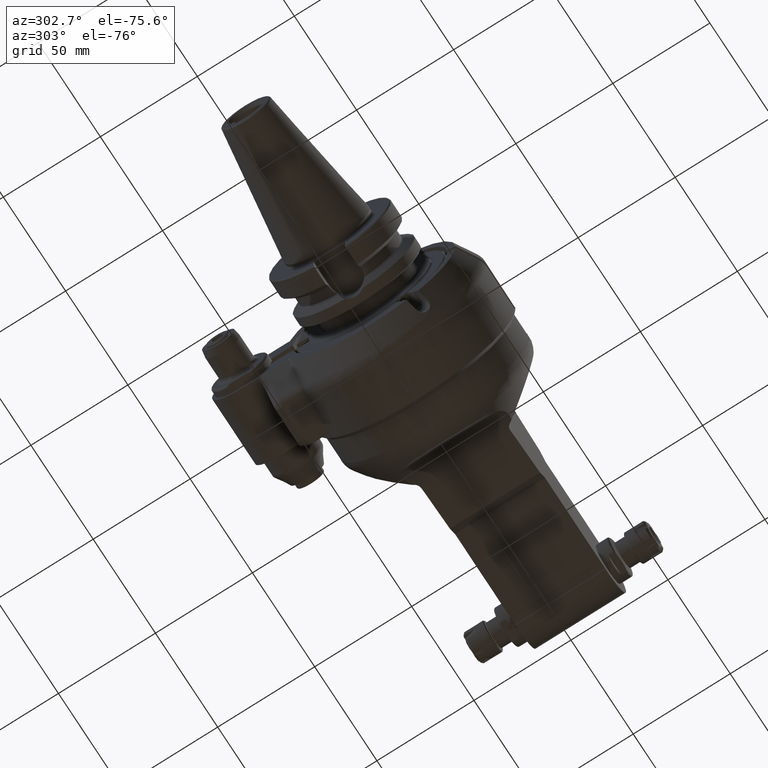
[diagram: clean part render]
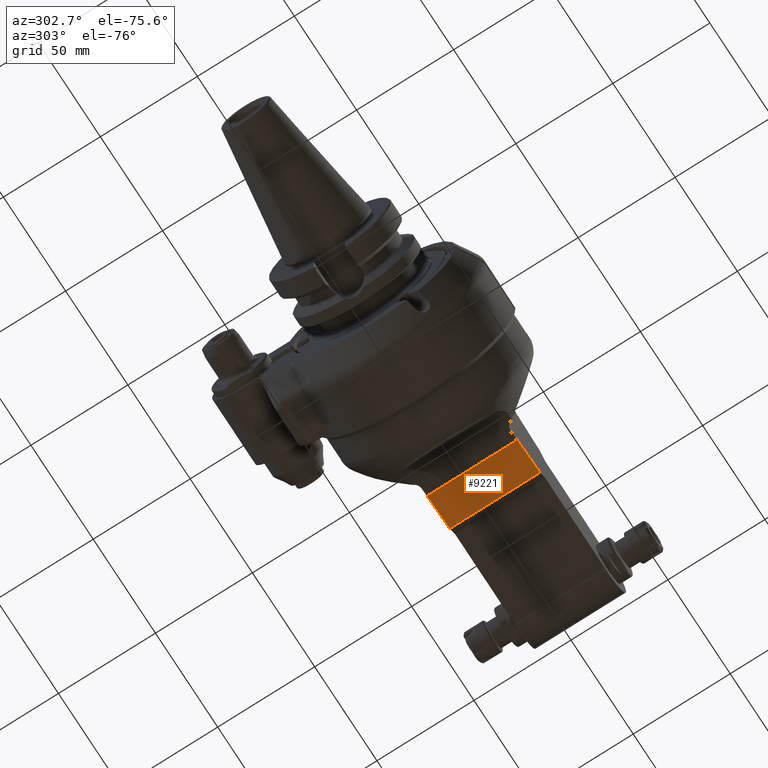
[diagram: same view with one face highlighted and labeled with its STEP entity id]
A machine part, auxiliary view. The second image highlights one B-rep face of the part: STEP entity #9221.
In plain terms, the highlighted planar face has unit normal (-0.1736, -0, 0.9848).
Its self-contained STEP definition (entity closure, byte-faithful):
#460=PLANE('',#10091);
#995=FACE_OUTER_BOUND('',#1599,.T.);
#1599=EDGE_LOOP('',(#7735,#7736,#7737,#7738));
#2849=LINE('',#45882,#3493);
#2871=LINE('',#45940,#3515);
#2875=LINE('',#45949,#3519);
#2876=LINE('',#45951,#3520);
#3493=VECTOR('',#12077,18.6166855458298);
#3515=VECTOR('',#12117,18.6166855458298);
#3519=VECTOR('',#12127,46.5);
#3520=VECTOR('',#12130,46.5);
#4302=VERTEX_POINT('',#45879);
#4303=VERTEX_POINT('',#45881);
#4329=VERTEX_POINT('',#45937);
#4330=VERTEX_POINT('',#45939);
#5495=EDGE_CURVE('',#4302,#4303,#2849,.T.);
#5524=EDGE_CURVE('',#4329,#4330,#2871,.T.);
#5529=EDGE_CURVE('',#4330,#4302,#2875,.T.);
#5530=EDGE_CURVE('',#4303,#4329,#2876,.T.);
#7735=ORIENTED_EDGE('',*,*,#5524,.F.);
#7736=ORIENTED_EDGE('',*,*,#5530,.F.);
#7737=ORIENTED_EDGE('',*,*,#5495,.F.);
#7738=ORIENTED_EDGE('',*,*,#5529,.F.);
#9221=ADVANCED_FACE('',(#995),#460,.F.);
#10091=AXIS2_PLACEMENT_3D('',#45950,#12128,#12129);
#12077=DIRECTION('',(0.173648177666902,0.984807753012213,0.));
#12117=DIRECTION('',(-0.173648177666902,-0.984807753012213,0.));
#12127=DIRECTION('',(0.,0.,1.));
#12128=DIRECTION('center_axis',(-0.984807753012213,0.173648177666902,0.));
#12129=DIRECTION('ref_axis',(0.173648177666902,0.984807753012213,0.));
#12130=DIRECTION('',(0.,0.,-1.));
#45879=CARTESIAN_POINT('',(18.74327822335,54.62785161146,23.5));
#45881=CARTESIAN_POINT('',(21.97603174258,72.96170787239,23.5));
#45882=CARTESIAN_POINT('',(18.74327822335,54.62785161146,23.5));
#45937=CARTESIAN_POINT('',(21.97603174258,72.96170787239,-23.));
#45939=CARTESIAN_POINT('',(18.74327822335,54.62785161146,-23.));
#45940=CARTESIAN_POINT('',(21.97603174258,72.96170787239,-23.));
#45949=CARTESIAN_POINT('',(18.74327822335,54.62785161146,-23.));
#45950=CARTESIAN_POINT('Origin',(17.98480775301,50.32635182233,-58.8000024));
#45951=CARTESIAN_POINT('',(21.97603174258,72.96170787239,23.5));